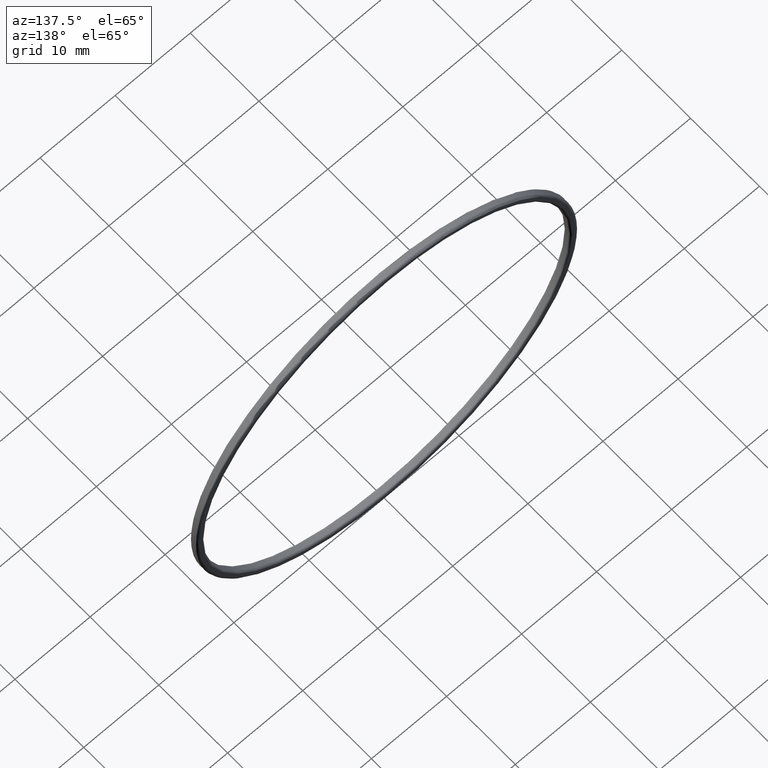
[diagram: clean part render]
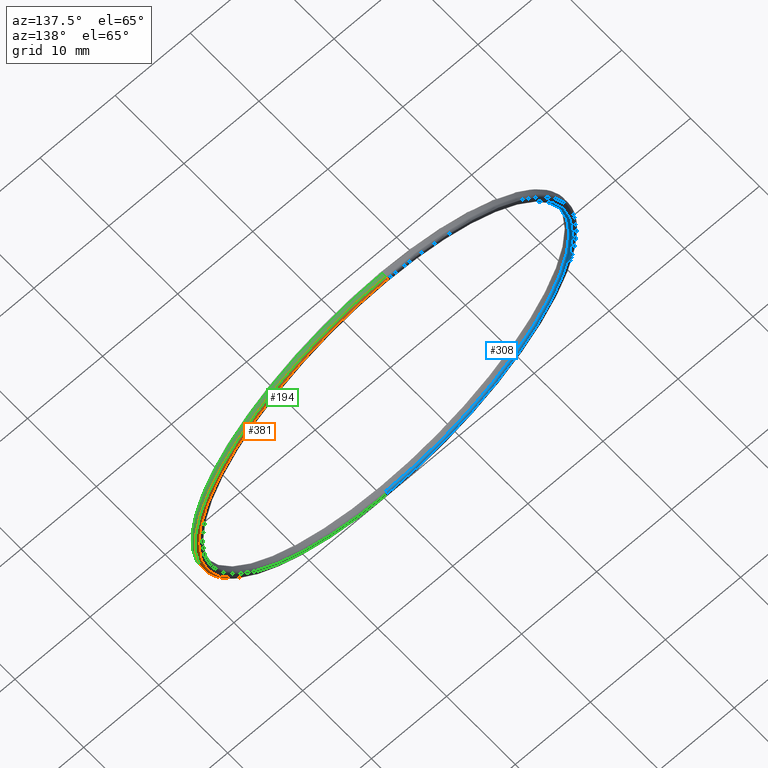
[diagram: same view with three faces highlighted in distinct colors, each labeled with its STEP entity id]
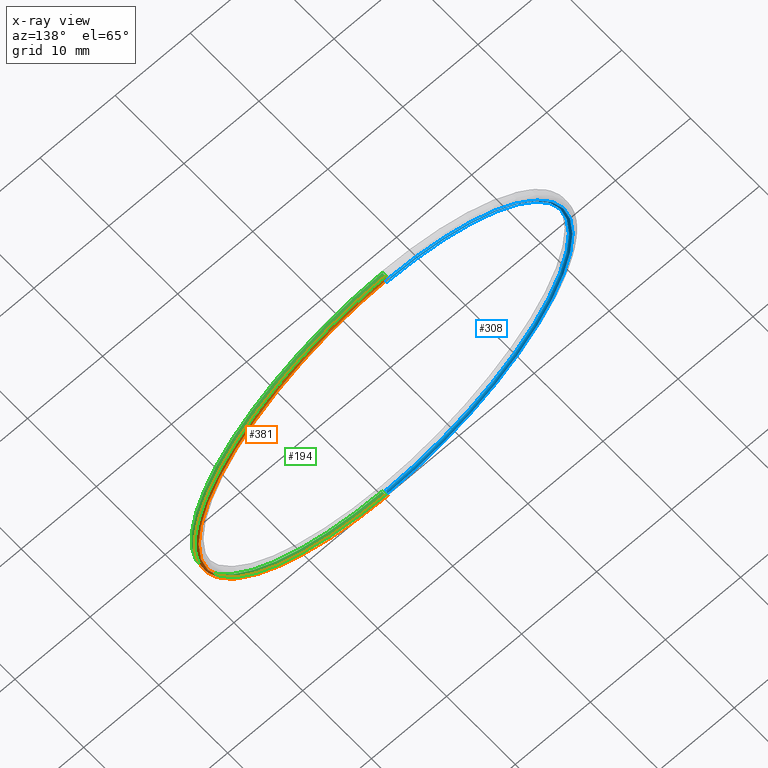
[diagram: x-ray of the same camera — body ghosted, the three highlighted faces saturated]
A machine part, auxiliary view with three faces highlighted in distinct colors.
The next image is the same camera in x-ray (body ghosted, the three faces saturated) — at least one of them is partly hidden behind the body in this view.
Their STEP definitions:

[orange] entity #381 — the highlighted toroidal blend (fillet) surface has major radius 25.15 mm and minor (blend) radius 0.25 mm.
#3 = CARTESIAN_POINT ( 'NONE',  ( 0.0000000000000000000, 0.4999999999999978351, 0.0000000000000000000 ) ) ;
#31 = EDGE_CURVE ( 'NONE', #124, #78, #305, .T. ) ;
#36 = CIRCLE ( 'NONE', #397, 25.14999999999999858 ) ;
#43 = DIRECTION ( 'NONE',  ( 0.0000000000000000000, 0.0000000000000000000, 1.000000000000000000 ) ) ;
#58 = EDGE_CURVE ( 'NONE', #124, #142, #36, .T. ) ;
#65 = ORIENTED_EDGE ( 'NONE', *, *, #31, .T. ) ;
#68 = ORIENTED_EDGE ( 'NONE', *, *, #58, .F. ) ;
#69 = ORIENTED_EDGE ( 'NONE', *, *, #339, .F. ) ;
#78 = VERTEX_POINT ( 'NONE', #256 ) ;
#87 = ORIENTED_EDGE ( 'NONE', *, *, #301, .F. ) ;
#91 = DIRECTION ( 'NONE',  ( 0.0000000000000000000, -1.000000000000000000, 0.0000000000000000000 ) ) ;
#104 = DIRECTION ( 'NONE',  ( -1.224646799147349509E-16, 0.0000000000000000000, -1.000000000000000000 ) ) ;
#124 = VERTEX_POINT ( 'NONE', #254 ) ;
#132 = DIRECTION ( 'NONE',  ( 0.0000000000000000000, -1.000000000000000000, 0.0000000000000000000 ) ) ;
#134 = CIRCLE ( 'NONE', #225, 25.39999999999999858 ) ;
#142 = VERTEX_POINT ( 'NONE', #251 ) ;
#161 = TOROIDAL_SURFACE ( 'NONE', #376, 25.14999999999999858, 0.2500000000000000000 ) ;
#167 = DIRECTION ( 'NONE',  ( 0.0000000000000000000, 0.0000000000000000000, -1.000000000000000000 ) ) ;
#180 = AXIS2_PLACEMENT_3D ( 'NONE', #229, #270, #43 ) ;
#185 = DIRECTION ( 'NONE',  ( -0.0000000000000000000, 1.000000000000000000, -0.0000000000000000000 ) ) ;
#204 = CIRCLE ( 'NONE', #180, 0.2500000000000002220 ) ;
#225 = AXIS2_PLACEMENT_3D ( 'NONE', #323, #91, #167 ) ;
#229 = CARTESIAN_POINT ( 'NONE',  ( 0.0000000000000000000, 0.2499999999999976130, -25.14999999999999858 ) ) ;
#251 = CARTESIAN_POINT ( 'NONE',  ( 0.0000000000000000000, 0.4999999999999978351, -25.14999999999999858 ) ) ;
#254 = CARTESIAN_POINT ( 'NONE',  ( 3.095294784844934972E-15, 0.4999999999999978351, 25.14999999999999858 ) ) ;
#256 = CARTESIAN_POINT ( 'NONE',  ( 0.0000000000000000000, 0.2499999999999976130, 25.39999999999999858 ) ) ;
#270 = DIRECTION ( 'NONE',  ( -1.000000000000000000, -0.0000000000000000000, -0.0000000000000000000 ) ) ;
#275 = CARTESIAN_POINT ( 'NONE',  ( 3.110602869834276865E-15, 0.2499999999999976130, -25.39999999999999858 ) ) ;
#282 = DIRECTION ( 'NONE',  ( 0.0000000000000000000, 0.0000000000000000000, -1.000000000000000000 ) ) ;
#289 = FACE_OUTER_BOUND ( 'NONE', #377, .T. ) ;
#301 = EDGE_CURVE ( 'NONE', #142, #326, #204, .T. ) ;
#305 = CIRCLE ( 'NONE', #385, 0.2500000000000002220 ) ;
#323 = CARTESIAN_POINT ( 'NONE',  ( 0.0000000000000000000, 0.2499999999999976130, 0.0000000000000000000 ) ) ;
#326 = VERTEX_POINT ( 'NONE', #275 ) ;
#328 = CARTESIAN_POINT ( 'NONE',  ( 3.079986699855593078E-15, 0.2499999999999976130, 25.14999999999999858 ) ) ;
#339 = EDGE_CURVE ( 'NONE', #326, #78, #134, .T. ) ;
#376 = AXIS2_PLACEMENT_3D ( 'NONE', #418, #132, #282 ) ;
#377 = EDGE_LOOP ( 'NONE', ( #68, #65, #69, #87 ) ) ;
#381 = ADVANCED_FACE ( 'NONE', ( #289 ), #161, .T. ) ;
#385 = AXIS2_PLACEMENT_3D ( 'NONE', #328, #422, #104 ) ;
#397 = AXIS2_PLACEMENT_3D ( 'NONE', #3, #185, #431 ) ;
#418 = CARTESIAN_POINT ( 'NONE',  ( 0.0000000000000000000, 0.2499999999999976130, 0.0000000000000000000 ) ) ;
#422 = DIRECTION ( 'NONE',  ( 1.000000000000000000, 0.0000000000000000000, -1.224646799147353207E-16 ) ) ;
#431 = DIRECTION ( 'NONE',  ( 0.0000000000000000000, 0.0000000000000000000, -1.000000000000000000 ) ) ;

[blue] entity #308 — the highlighted toroidal blend (fillet) surface has major radius 24.65 mm and minor (blend) radius 0.25 mm.
#12 = VERTEX_POINT ( 'NONE', #290 ) ;
#24 = EDGE_CURVE ( 'NONE', #415, #122, #406, .T. ) ;
#32 = CARTESIAN_POINT ( 'NONE',  ( 3.018754359898225504E-15, 0.4999999999999977240, 24.64999999999999858 ) ) ;
#75 = CIRCLE ( 'NONE', #268, 24.39999999999999858 ) ;
#82 = ORIENTED_EDGE ( 'NONE', *, *, #117, .F. ) ;
#101 = AXIS2_PLACEMENT_3D ( 'NONE', #176, #107, #287 ) ;
#107 = DIRECTION ( 'NONE',  ( 1.000000000000000000, 0.0000000000000000000, -1.224646799147353207E-16 ) ) ;
#117 = EDGE_CURVE ( 'NONE', #122, #12, #359, .T. ) ;
#121 = DIRECTION ( 'NONE',  ( 0.0000000000000000000, -1.000000000000000000, 0.0000000000000000000 ) ) ;
#122 = VERTEX_POINT ( 'NONE', #32 ) ;
#176 = CARTESIAN_POINT ( 'NONE',  ( 3.018754359898225504E-15, 0.2499999999999976130, 24.64999999999999858 ) ) ;
#177 = CARTESIAN_POINT ( 'NONE',  ( 0.0000000000000000000, 0.4999999999999978351, 0.0000000000000000000 ) ) ;
#199 = ORIENTED_EDGE ( 'NONE', *, *, #310, .T. ) ;
#203 = AXIS2_PLACEMENT_3D ( 'NONE', #355, #121, #443 ) ;
#205 = DIRECTION ( 'NONE',  ( -1.000000000000000000, -0.0000000000000000000, -0.0000000000000000000 ) ) ;
#206 = DIRECTION ( 'NONE',  ( 0.0000000000000000000, 0.0000000000000000000, 1.000000000000000000 ) ) ;
#208 = AXIS2_PLACEMENT_3D ( 'NONE', #452, #205, #206 ) ;
#209 = CIRCLE ( 'NONE', #208, 0.2500000000000002220 ) ;
#219 = VERTEX_POINT ( 'NONE', #352 ) ;
#230 = TOROIDAL_SURFACE ( 'NONE', #203, 24.64999999999999858, 0.2500000000000000000 ) ;
#249 = EDGE_CURVE ( 'NONE', #219, #415, #75, .T. ) ;
#268 = AXIS2_PLACEMENT_3D ( 'NONE', #447, #313, #411 ) ;
#287 = DIRECTION ( 'NONE',  ( -1.224646799147349509E-16, 0.0000000000000000000, -1.000000000000000000 ) ) ;
#290 = CARTESIAN_POINT ( 'NONE',  ( 0.0000000000000000000, 0.4999999999999977240, -24.64999999999999858 ) ) ;
#292 = ORIENTED_EDGE ( 'NONE', *, *, #24, .F. ) ;
#308 = ADVANCED_FACE ( 'NONE', ( #391 ), #230, .T. ) ;
#310 = EDGE_CURVE ( 'NONE', #219, #12, #209, .T. ) ;
#313 = DIRECTION ( 'NONE',  ( -0.0000000000000000000, 1.000000000000000000, -0.0000000000000000000 ) ) ;
#352 = CARTESIAN_POINT ( 'NONE',  ( 2.988138189919541717E-15, 0.2499999999999976130, -24.39999999999999858 ) ) ;
#355 = CARTESIAN_POINT ( 'NONE',  ( 0.0000000000000000000, 0.2499999999999976130, 0.0000000000000000000 ) ) ;
#359 = CIRCLE ( 'NONE', #437, 24.64999999999999858 ) ;
#391 = FACE_OUTER_BOUND ( 'NONE', #454, .T. ) ;
#392 = CARTESIAN_POINT ( 'NONE',  ( 0.0000000000000000000, 0.2499999999999976130, 24.39999999999999858 ) ) ;
#401 = ORIENTED_EDGE ( 'NONE', *, *, #249, .F. ) ;
#406 = CIRCLE ( 'NONE', #101, 0.2500000000000002220 ) ;
#411 = DIRECTION ( 'NONE',  ( 0.0000000000000000000, 0.0000000000000000000, -1.000000000000000000 ) ) ;
#415 = VERTEX_POINT ( 'NONE', #392 ) ;
#426 = DIRECTION ( 'NONE',  ( 0.0000000000000000000, 0.0000000000000000000, -1.000000000000000000 ) ) ;
#429 = DIRECTION ( 'NONE',  ( 0.0000000000000000000, -1.000000000000000000, 0.0000000000000000000 ) ) ;
#437 = AXIS2_PLACEMENT_3D ( 'NONE', #177, #429, #426 ) ;
#443 = DIRECTION ( 'NONE',  ( 0.0000000000000000000, 0.0000000000000000000, -1.000000000000000000 ) ) ;
#447 = CARTESIAN_POINT ( 'NONE',  ( 0.0000000000000000000, 0.2499999999999976130, 0.0000000000000000000 ) ) ;
#452 = CARTESIAN_POINT ( 'NONE',  ( 0.0000000000000000000, 0.2499999999999976130, -24.64999999999999858 ) ) ;
#454 = EDGE_LOOP ( 'NONE', ( #292, #401, #199, #82 ) ) ;

[green] entity #194 — the highlighted cylindrical surface (partial cylindrical patch) has radius 25.4 mm, axis along (-0, 1, -0).
#6 = FACE_OUTER_BOUND ( 'NONE', #145, .T. ) ;
#8 = EDGE_CURVE ( 'NONE', #77, #326, #95, .T. ) ;
#60 = VERTEX_POINT ( 'NONE', #215 ) ;
#64 = CARTESIAN_POINT ( 'NONE',  ( 3.110602869834276865E-15, 4.847222222222231203, -25.39999999999999858 ) ) ;
#66 = CIRCLE ( 'NONE', #128, 25.39999999999999858 ) ;
#77 = VERTEX_POINT ( 'NONE', #325 ) ;
#78 = VERTEX_POINT ( 'NONE', #256 ) ;
#91 = DIRECTION ( 'NONE',  ( 0.0000000000000000000, -1.000000000000000000, 0.0000000000000000000 ) ) ;
#95 = LINE ( 'NONE', #64, #257 ) ;
#128 = AXIS2_PLACEMENT_3D ( 'NONE', #432, #267, #342 ) ;
#134 = CIRCLE ( 'NONE', #225, 25.39999999999999858 ) ;
#137 = EDGE_CURVE ( 'NONE', #60, #77, #66, .T. ) ;
#145 = EDGE_LOOP ( 'NONE', ( #345, #399, #389, #152 ) ) ;
#150 = VECTOR ( 'NONE', #260, 1000.000000000000000 ) ;
#151 = AXIS2_PLACEMENT_3D ( 'NONE', #155, #160, #312 ) ;
#152 = ORIENTED_EDGE ( 'NONE', *, *, #171, .F. ) ;
#155 = CARTESIAN_POINT ( 'NONE',  ( 0.0000000000000000000, 4.847222222222231203, 0.0000000000000000000 ) ) ;
#160 = DIRECTION ( 'NONE',  ( -0.0000000000000000000, 1.000000000000000000, -0.0000000000000000000 ) ) ;
#167 = DIRECTION ( 'NONE',  ( 0.0000000000000000000, 0.0000000000000000000, -1.000000000000000000 ) ) ;
#171 = EDGE_CURVE ( 'NONE', #60, #78, #364, .T. ) ;
#194 = ADVANCED_FACE ( 'NONE', ( #6 ), #216, .T. ) ;
#215 = CARTESIAN_POINT ( 'NONE',  ( 0.0000000000000000000, -0.2500000000000019429, 25.39999999999999858 ) ) ;
#216 = CYLINDRICAL_SURFACE ( 'NONE', #151, 25.39999999999999858 ) ;
#225 = AXIS2_PLACEMENT_3D ( 'NONE', #323, #91, #167 ) ;
#256 = CARTESIAN_POINT ( 'NONE',  ( 0.0000000000000000000, 0.2499999999999976130, 25.39999999999999858 ) ) ;
#257 = VECTOR ( 'NONE', #294, 1000.000000000000000 ) ;
#260 = DIRECTION ( 'NONE',  ( -0.0000000000000000000, 1.000000000000000000, -0.0000000000000000000 ) ) ;
#262 = CARTESIAN_POINT ( 'NONE',  ( 0.0000000000000000000, 4.847222222222231203, 25.39999999999999858 ) ) ;
#267 = DIRECTION ( 'NONE',  ( -0.0000000000000000000, 1.000000000000000000, -0.0000000000000000000 ) ) ;
#275 = CARTESIAN_POINT ( 'NONE',  ( 3.110602869834276865E-15, 0.2499999999999976130, -25.39999999999999858 ) ) ;
#294 = DIRECTION ( 'NONE',  ( -0.0000000000000000000, 1.000000000000000000, -0.0000000000000000000 ) ) ;
#312 = DIRECTION ( 'NONE',  ( 0.0000000000000000000, 0.0000000000000000000, 1.000000000000000000 ) ) ;
#323 = CARTESIAN_POINT ( 'NONE',  ( 0.0000000000000000000, 0.2499999999999976130, 0.0000000000000000000 ) ) ;
#325 = CARTESIAN_POINT ( 'NONE',  ( 3.110602869834276865E-15, -0.2500000000000019429, -25.39999999999999858 ) ) ;
#326 = VERTEX_POINT ( 'NONE', #275 ) ;
#339 = EDGE_CURVE ( 'NONE', #326, #78, #134, .T. ) ;
#342 = DIRECTION ( 'NONE',  ( 0.0000000000000000000, 0.0000000000000000000, 1.000000000000000000 ) ) ;
#345 = ORIENTED_EDGE ( 'NONE', *, *, #137, .T. ) ;
#364 = LINE ( 'NONE', #262, #150 ) ;
#389 = ORIENTED_EDGE ( 'NONE', *, *, #339, .T. ) ;
#399 = ORIENTED_EDGE ( 'NONE', *, *, #8, .T. ) ;
#432 = CARTESIAN_POINT ( 'NONE',  ( 0.0000000000000000000, -0.2500000000000019429, 0.0000000000000000000 ) ) ;